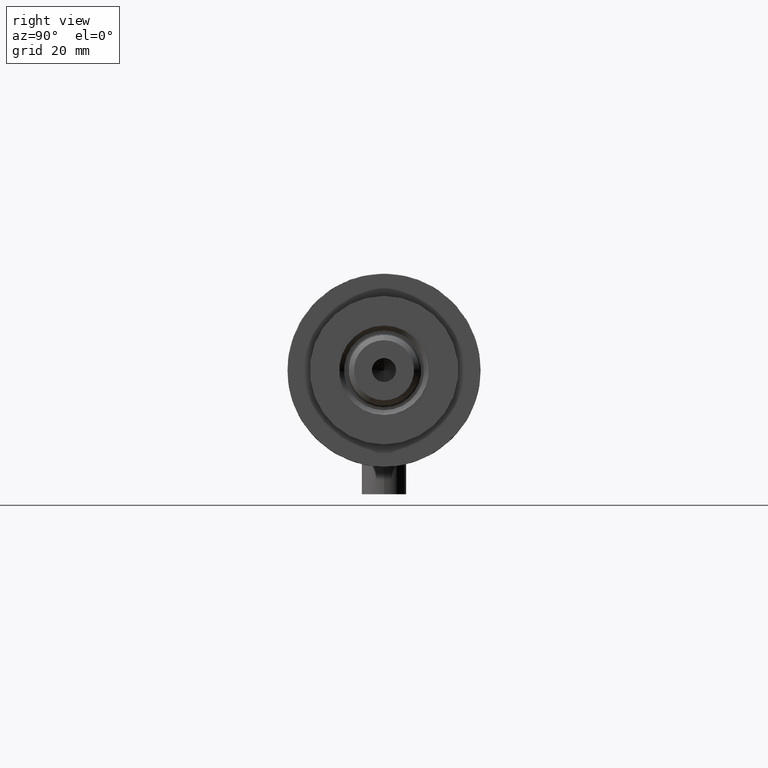
[diagram: clean part render]
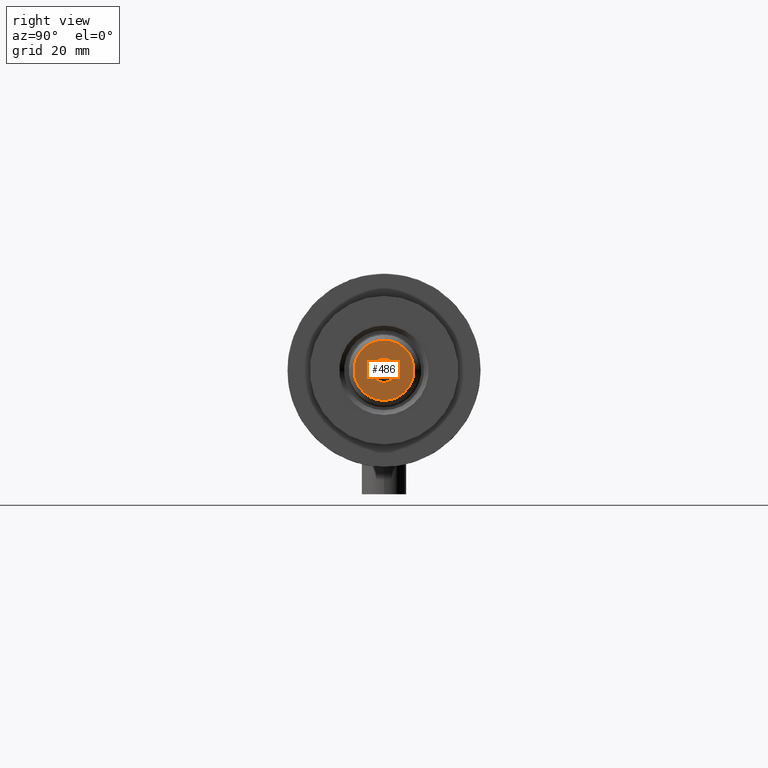
[diagram: same view with one face highlighted and labeled with its STEP entity id]
A machine part, right view. The second image highlights one B-rep face of the part: STEP entity #486.
In plain terms, the highlighted planar face has unit normal (1, 0, -0).
Its self-contained STEP definition (entity closure, byte-faithful):
#111 = CIRCLE ( 'NONE', #2280, 3.249999999999998224 ) ;
#188 = AXIS2_PLACEMENT_3D ( 'NONE', #3432, #1415, #242 ) ;
#236 = EDGE_CURVE ( 'NONE', #3236, #4278, #1917, .T. ) ;
#242 = DIRECTION ( 'NONE',  ( 1.000000000000000000, 0.000000000000000000, 0.000000000000000000 ) ) ;
#331 = CARTESIAN_POINT ( 'NONE',  ( 8.100000000000010303, 1.077689183249671591E-15, 145.6999999999999886 ) ) ;
#347 = EDGE_LOOP ( 'NONE', ( #4766, #2976 ) ) ;
#486 = ADVANCED_FACE ( 'NONE', ( #3133, #3459 ), #681, .T. ) ;
#681 = PLANE ( 'NONE',  #2102 ) ;
#751 = EDGE_CURVE ( 'NONE', #2733, #1981, #2350, .T. ) ;
#774 = CARTESIAN_POINT ( 'NONE',  ( 0.000000000000000000, 0.000000000000000000, 145.6999999999999886 ) ) ;
#840 = AXIS2_PLACEMENT_3D ( 'NONE', #774, #5089, #4298 ) ;
#1415 = DIRECTION ( 'NONE',  ( 0.000000000000000000, 0.000000000000000000, 1.000000000000000000 ) ) ;
#1917 = CIRCLE ( 'NONE', #3190, 3.249999999999998224 ) ;
#1939 = CIRCLE ( 'NONE', #188, 8.100000000000010303 ) ;
#1981 = VERTEX_POINT ( 'NONE', #331 ) ;
#2102 = AXIS2_PLACEMENT_3D ( 'NONE', #5052, #3054, #4663 ) ;
#2159 = EDGE_CURVE ( 'NONE', #4278, #3236, #111, .T. ) ;
#2280 = AXIS2_PLACEMENT_3D ( 'NONE', #4938, #3342, #4520 ) ;
#2350 = CIRCLE ( 'NONE', #840, 8.100000000000010303 ) ;
#2733 = VERTEX_POINT ( 'NONE', #4568 ) ;
#2754 = EDGE_CURVE ( 'NONE', #1981, #2733, #1939, .T. ) ;
#2908 = CARTESIAN_POINT ( 'NONE',  ( 0.000000000000000000, 0.000000000000000000, 145.6999999999999886 ) ) ;
#2962 = DIRECTION ( 'NONE',  ( 1.000000000000000000, 0.000000000000000000, 0.000000000000000000 ) ) ;
#2976 = ORIENTED_EDGE ( 'NONE', *, *, #236, .F. ) ;
#3035 = ORIENTED_EDGE ( 'NONE', *, *, #2754, .T. ) ;
#3054 = DIRECTION ( 'NONE',  ( 0.000000000000000000, 0.000000000000000000, 1.000000000000000000 ) ) ;
#3133 = FACE_OUTER_BOUND ( 'NONE', #4903, .T. ) ;
#3190 = AXIS2_PLACEMENT_3D ( 'NONE', #2908, #4145, #2962 ) ;
#3236 = VERTEX_POINT ( 'NONE', #4918 ) ;
#3342 = DIRECTION ( 'NONE',  ( -0.000000000000000000, -0.000000000000000000, 1.000000000000000000 ) ) ;
#3432 = CARTESIAN_POINT ( 'NONE',  ( 0.000000000000000000, 0.000000000000000000, 145.6999999999999886 ) ) ;
#3459 = FACE_BOUND ( 'NONE', #347, .T. ) ;
#3518 = ORIENTED_EDGE ( 'NONE', *, *, #751, .T. ) ;
#4145 = DIRECTION ( 'NONE',  ( -0.000000000000000000, -0.000000000000000000, 1.000000000000000000 ) ) ;
#4278 = VERTEX_POINT ( 'NONE', #5071 ) ;
#4298 = DIRECTION ( 'NONE',  ( 1.000000000000000000, 0.000000000000000000, 0.000000000000000000 ) ) ;
#4520 = DIRECTION ( 'NONE',  ( 1.000000000000000000, 0.000000000000000000, 0.000000000000000000 ) ) ;
#4568 = CARTESIAN_POINT ( 'NONE',  ( -8.100000000000010303, 0.000000000000000000, 145.6999999999999886 ) ) ;
#4663 = DIRECTION ( 'NONE',  ( 1.000000000000000000, 0.000000000000000000, -0.000000000000000000 ) ) ;
#4766 = ORIENTED_EDGE ( 'NONE', *, *, #2159, .F. ) ;
#4903 = EDGE_LOOP ( 'NONE', ( #3518, #3035 ) ) ;
#4918 = CARTESIAN_POINT ( 'NONE',  ( -3.249999999999998224, 3.980102097228895766E-16, 145.6999999999999886 ) ) ;
#4938 = CARTESIAN_POINT ( 'NONE',  ( 0.000000000000000000, 0.000000000000000000, 145.6999999999999886 ) ) ;
#5052 = CARTESIAN_POINT ( 'NONE',  ( 0.000000000000000000, 0.000000000000000000, 145.6999999999999886 ) ) ;
#5071 = CARTESIAN_POINT ( 'NONE',  ( 3.249999999999998224, 0.000000000000000000, 145.6999999999999886 ) ) ;
#5089 = DIRECTION ( 'NONE',  ( 0.000000000000000000, 0.000000000000000000, 1.000000000000000000 ) ) ;